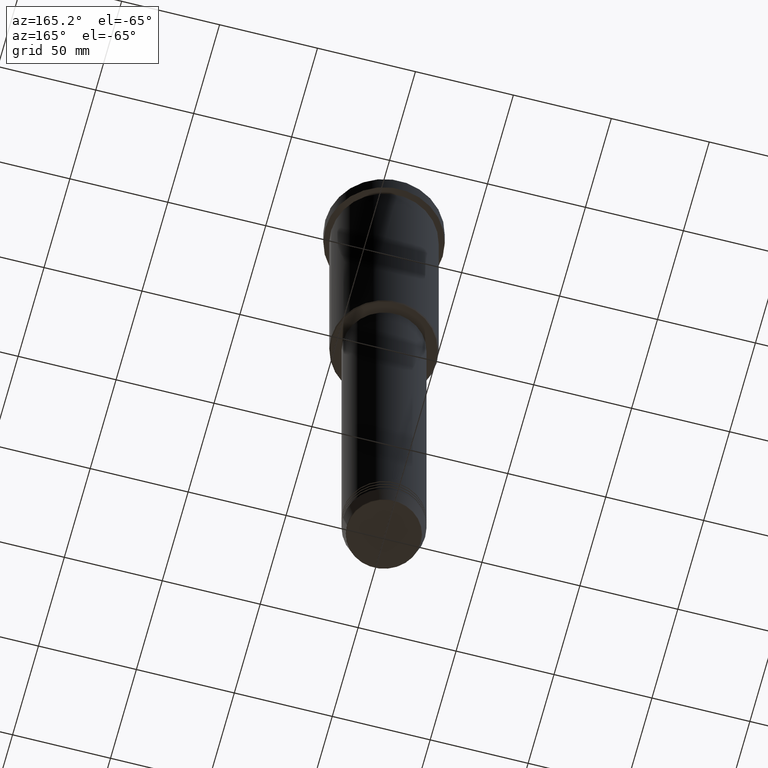
[diagram: clean part render]
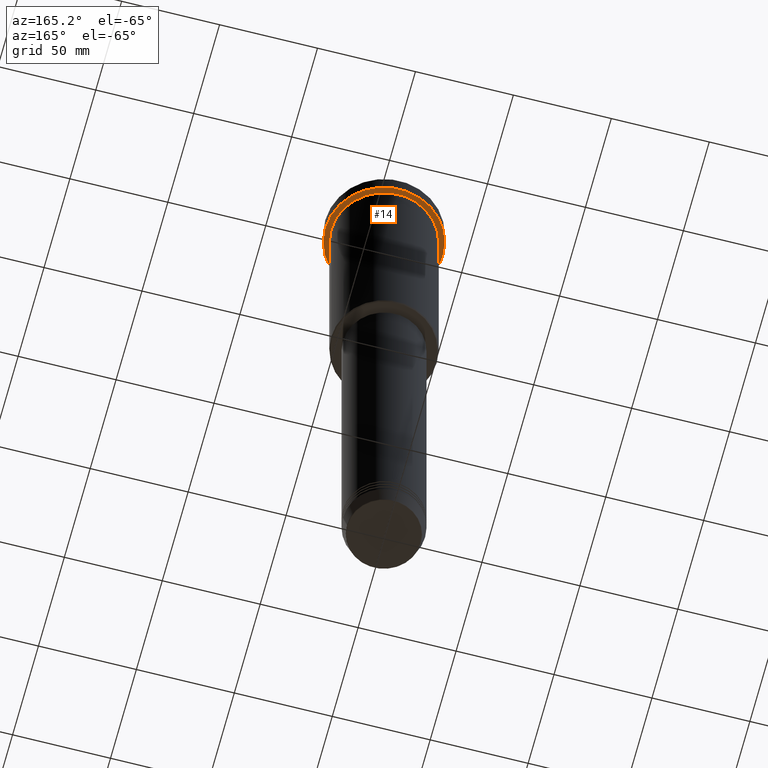
[diagram: same view with one face highlighted and labeled with its STEP entity id]
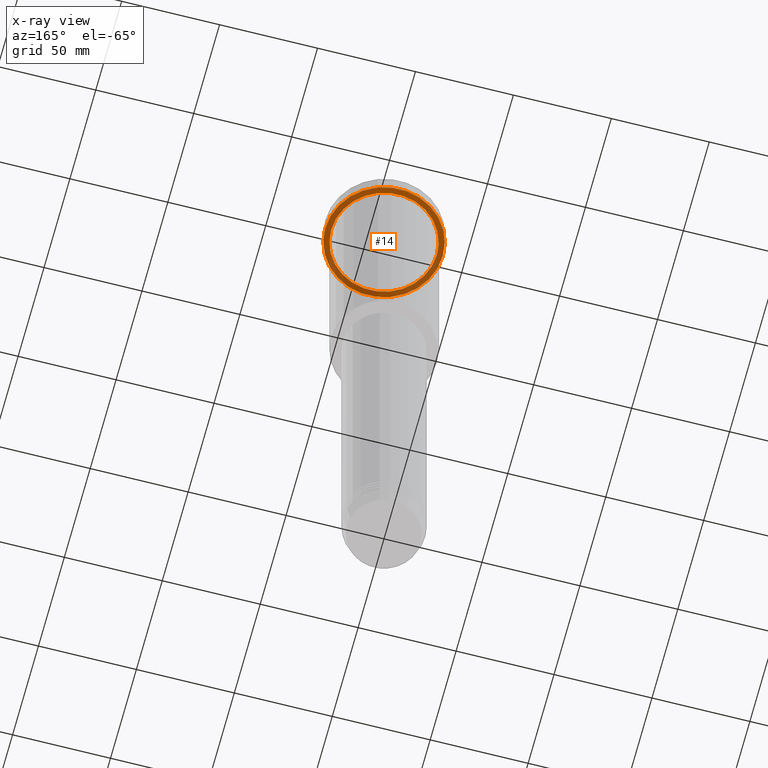
[diagram: x-ray of the same camera — body ghosted, the highlighted face saturated]
A machine part, auxiliary view. The second image highlights one B-rep face of the part: STEP entity #14.
The next image is the same camera in x-ray: the body ghosted, the highlighted face saturated — about 39% of this face is hidden behind the body in this view.
In plain terms, the highlighted planar face has unit normal (0, 0, -1).
Its self-contained STEP definition (entity closure, byte-faithful):
#14 = ADVANCED_FACE ( 'NONE', ( #1102, #487 ), #659, .T. ) ;
#63 = VERTEX_POINT ( 'NONE', #220 ) ;
#89 = CIRCLE ( 'NONE', #379, 30.00000000000000000 ) ;
#103 = CARTESIAN_POINT ( 'NONE',  ( 0.000000000000000000, 0.000000000000000000, -9.999999999999992895 ) ) ;
#146 = DIRECTION ( 'NONE',  ( 1.000000000000000000, 0.000000000000000000, 0.000000000000000000 ) ) ;
#171 = CARTESIAN_POINT ( 'NONE',  ( 30.00000000000000000, 0.000000000000000000, -9.999999999999992895 ) ) ;
#172 = EDGE_LOOP ( 'NONE', ( #825, #432 ) ) ;
#193 = DIRECTION ( 'NONE',  ( -1.000000000000000000, 0.000000000000000000, -0.000000000000000000 ) ) ;
#200 = CARTESIAN_POINT ( 'NONE',  ( 0.000000000000000000, 30.00000000000000000, -9.999999999999992895 ) ) ;
#220 = CARTESIAN_POINT ( 'NONE',  ( -30.00000000000000000, 3.673940397442059178E-15, -9.999999999999992895 ) ) ;
#235 = VERTEX_POINT ( 'NONE', #701 ) ;
#280 = DIRECTION ( 'NONE',  ( -1.000000000000000000, 0.000000000000000000, 0.000000000000000000 ) ) ;
#290 = CIRCLE ( 'NONE', #362, 30.00000000000000000 ) ;
#362 = AXIS2_PLACEMENT_3D ( 'NONE', #974, #799, #146 ) ;
#379 = AXIS2_PLACEMENT_3D ( 'NONE', #103, #862, #464 ) ;
#381 = VERTEX_POINT ( 'NONE', #550 ) ;
#386 = DIRECTION ( 'NONE',  ( -1.000000000000000000, 0.000000000000000000, 0.000000000000000000 ) ) ;
#412 = AXIS2_PLACEMENT_3D ( 'NONE', #563, #843, #280 ) ;
#432 = ORIENTED_EDGE ( 'NONE', *, *, #457, .F. ) ;
#457 = EDGE_CURVE ( 'NONE', #63, #663, #290, .T. ) ;
#464 = DIRECTION ( 'NONE',  ( 1.000000000000000000, 0.000000000000000000, 0.000000000000000000 ) ) ;
#479 = ORIENTED_EDGE ( 'NONE', *, *, #729, .T. ) ;
#486 = DIRECTION ( 'NONE',  ( -0.000000000000000000, -0.000000000000000000, 1.000000000000000000 ) ) ;
#487 = FACE_OUTER_BOUND ( 'NONE', #172, .T. ) ;
#550 = CARTESIAN_POINT ( 'NONE',  ( 27.00000000000000355, 3.306546357697854128E-15, -9.999999999999992895 ) ) ;
#563 = CARTESIAN_POINT ( 'NONE',  ( 0.000000000000000000, 0.000000000000000000, -9.999999999999992895 ) ) ;
#565 = EDGE_LOOP ( 'NONE', ( #672, #479 ) ) ;
#570 = CIRCLE ( 'NONE', #655, 27.00000000000000355 ) ;
#629 = AXIS2_PLACEMENT_3D ( 'NONE', #200, #1015, #193 ) ;
#655 = AXIS2_PLACEMENT_3D ( 'NONE', #670, #486, #386 ) ;
#659 = PLANE ( 'NONE',  #629 ) ;
#663 = VERTEX_POINT ( 'NONE', #171 ) ;
#670 = CARTESIAN_POINT ( 'NONE',  ( 0.000000000000000000, 0.000000000000000000, -9.999999999999992895 ) ) ;
#672 = ORIENTED_EDGE ( 'NONE', *, *, #961, .T. ) ;
#691 = CIRCLE ( 'NONE', #412, 27.00000000000000355 ) ;
#701 = CARTESIAN_POINT ( 'NONE',  ( -27.00000000000000355, 0.000000000000000000, -9.999999999999992895 ) ) ;
#729 = EDGE_CURVE ( 'NONE', #381, #235, #691, .T. ) ;
#799 = DIRECTION ( 'NONE',  ( -0.000000000000000000, -0.000000000000000000, 1.000000000000000000 ) ) ;
#825 = ORIENTED_EDGE ( 'NONE', *, *, #968, .F. ) ;
#843 = DIRECTION ( 'NONE',  ( -0.000000000000000000, -0.000000000000000000, 1.000000000000000000 ) ) ;
#862 = DIRECTION ( 'NONE',  ( -0.000000000000000000, -0.000000000000000000, 1.000000000000000000 ) ) ;
#961 = EDGE_CURVE ( 'NONE', #235, #381, #570, .T. ) ;
#968 = EDGE_CURVE ( 'NONE', #663, #63, #89, .T. ) ;
#974 = CARTESIAN_POINT ( 'NONE',  ( 0.000000000000000000, 0.000000000000000000, -9.999999999999992895 ) ) ;
#1015 = DIRECTION ( 'NONE',  ( 0.000000000000000000, 0.000000000000000000, -1.000000000000000000 ) ) ;
#1102 = FACE_BOUND ( 'NONE', #565, .T. ) ;